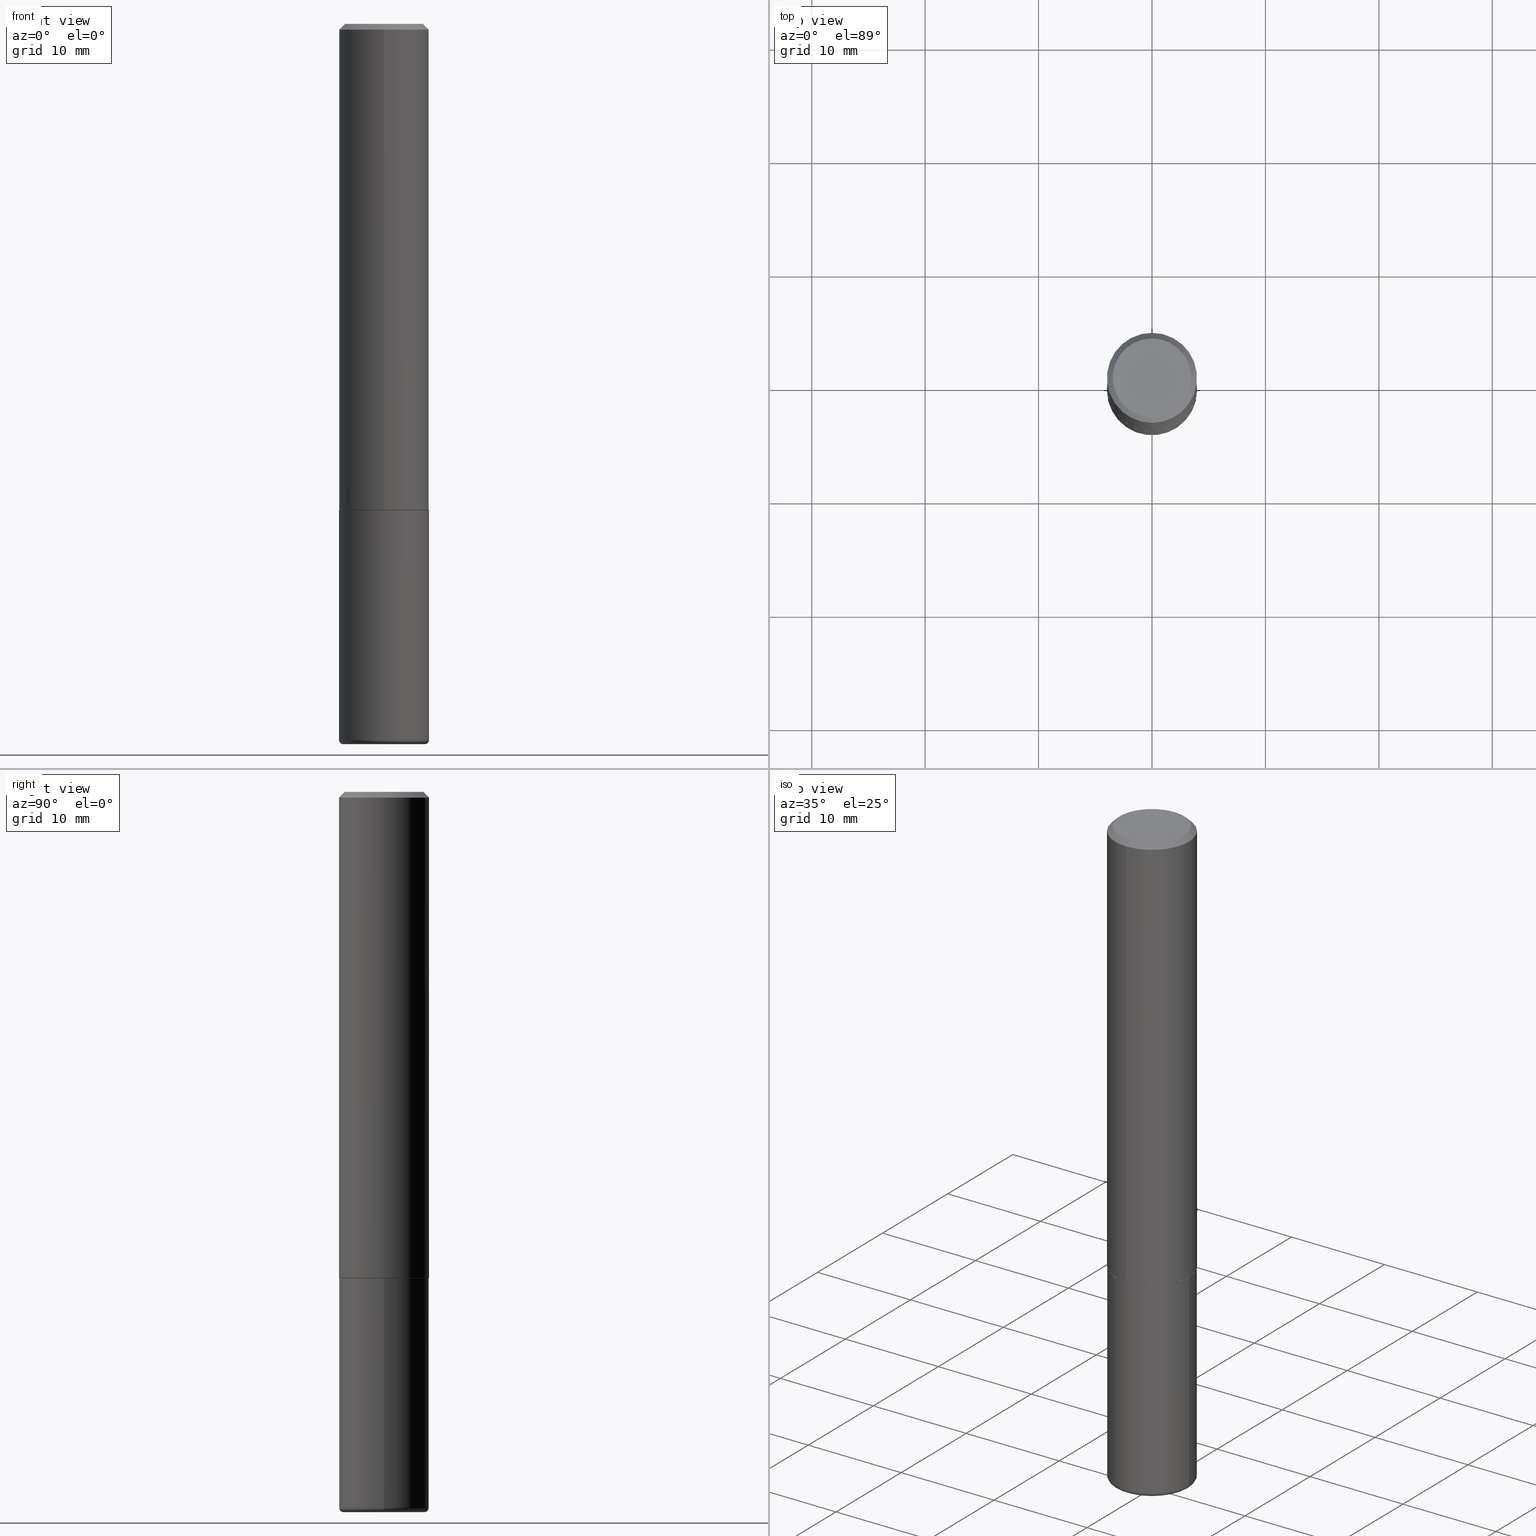
[diagram: canonical four-view strip — front | top / right | iso, engineering-drawing reading convention]
A machine part, canonical four-view strip (front | top / right | iso — engineering-drawing reading convention). The complete STEP part file that produces these views, byte-faithful:
ISO-10303-21;
HEADER;
FILE_DESCRIPTION (( 'STEP AP203' ),
    '1' );
FILE_NAME ('38366.STEP',
    '2024-03-03T01:07:28',
    ( '' ),
    ( '' ),
    'SwSTEP 2.0',
    'SolidWorks 2023',
    '' );
FILE_SCHEMA (( 'CONFIG_CONTROL_DESIGN' ));
ENDSEC;

DATA;
#1 = CARTESIAN_POINT ( 'NONE',  ( 4.124618234985879242E-29, -5.891400171131153383E-15, -1.687000000000000055 ) ) ;
#2 = EDGE_CURVE ( 'NONE', #40, #372, #196, .T. ) ;
#3 = DIRECTION ( 'NONE',  ( 6.982962677686265922E-15, 1.000000000000000000, -3.492234837659248797E-15 ) ) ;
#4 = AXIS2_PLACEMENT_3D ( 'NONE', #190, #223, #265 ) ;
#5 = CARTESIAN_POINT ( 'NONE',  ( 1.110223024625157132E-15, 0.1562500000000001110, -5.456616933842580190E-16 ) ) ;
#6 = EDGE_CURVE ( 'NONE', #141, #178, #191, .T. ) ;
#7 = VERTEX_POINT ( 'NONE', #52 ) ;
#8 = EDGE_CURVE ( 'NONE', #390, #156, #274, .T. ) ;
#9 = CC_DESIGN_APPROVAL ( #323, ( #277 ) ) ;
#10 = EDGE_LOOP ( 'NONE', ( #236, #78, #344, #349 ) ) ;
#11 = DATE_AND_TIME ( #12, #197 ) ;
#12 = CALENDAR_DATE ( 2024, 2, 3 ) ;
#13 = LOCAL_TIME ( 20, 7, 28.00000000000000000, #42 ) ;
#14 = VERTEX_POINT ( 'NONE', #24 ) ;
#15 = PERSON_AND_ORGANIZATION_ROLE ( 'creator' ) ;
#16 = DIRECTION ( 'NONE',  ( 1.000000000000000000, -6.982962677686264344E-15, 4.883557194083111780E-29 ) ) ;
#17 = EDGE_LOOP ( 'NONE', ( #385, #364 ) ) ;
#18 = DIRECTION ( 'NONE',  ( 6.982962677686265133E-15, 1.000000000000000000, -3.496765431890256920E-15 ) ) ;
#19 = APPROVAL ( #241, 'UNSPECIFIED' ) ;
#20 = DIRECTION ( 'NONE',  ( 1.000000000000000000, -6.982962677686269077E-15, 0.000000000000000000 ) ) ;
#21 = EDGE_CURVE ( 'NONE', #372, #141, #154, .T. ) ;
#22 = VECTOR ( 'NONE', #342, 39.37007874015748143 ) ;
#23 = AXIS2_PLACEMENT_3D ( 'NONE', #232, #59, #68 ) ;
#24 = CARTESIAN_POINT ( 'NONE',  ( 1.110223024625178234E-15, 0.1562499999999943101, -1.687000000000000499 ) ) ;
#25 = DIRECTION ( 'NONE',  ( -2.445468806185136597E-29, 3.491481338843145583E-15, 1.000000000000000000 ) ) ;
#26 = DIRECTION ( 'NONE',  ( -6.982962677686265922E-15, -1.000000000000000000, 3.519288880726909138E-15 ) ) ;
#27 = CARTESIAN_POINT ( 'NONE',  ( 0.1412499999999999867, -9.715046825331048380E-15, -2.499999999999999556 ) ) ;
#28 = ORGANIZATION ( 'UNSPECIFIED', 'UNSPECIFIED', '' ) ;
#29 = AXIS2_PLACEMENT_3D ( 'NONE', #320, #160, #411 ) ;
#30 = EDGE_LOOP ( 'NONE', ( #242, #410, #330, #44 ) ) ;
#31 = CARTESIAN_POINT ( 'NONE',  ( 1.103117597267596553E-15, 0.1552499999999940872, -1.688000000000000611 ) ) ;
#32 = ADVANCED_FACE ( 'NONE', ( #407 ), #119, .T. ) ;
#33 = DIRECTION ( 'NONE',  ( -6.982962677686265922E-15, -1.000000000000000000, 3.496765431890251792E-15 ) ) ;
#34 = DIRECTION ( 'NONE',  ( 2.444942640774083230E-29, -3.492234837659248797E-15, -1.000000000000000000 ) ) ;
#35 = EDGE_CURVE ( 'NONE', #276, #347, #229, .T. ) ;
#36 = PERSON_AND_ORGANIZATION ( #416, #28 ) ;
#37 = LINE ( 'NONE', #5, #161 ) ;
#38 = CIRCLE ( 'NONE', #136, 0.1552499999999999991 ) ;
#39 = EDGE_CURVE ( 'NONE', #146, #178, #305, .T. ) ;
#40 = VERTEX_POINT ( 'NONE', #224 ) ;
#41 = EDGE_LOOP ( 'NONE', ( #225, #294, #244, #174 ) ) ;
#42 = COORDINATED_UNIVERSAL_TIME_OFFSET ( 5, 0, .BEHIND. ) ;
#43 = AXIS2_PLACEMENT_3D ( 'NONE', #398, #150, #211 ) ;
#44 = ORIENTED_EDGE ( 'NONE', *, *, #8, .F. ) ;
#45 = PERSON_AND_ORGANIZATION ( #416, #28 ) ;
#46 = ORIENTED_EDGE ( 'NONE', *, *, #312, .F. ) ;
#47 = AXIS2_PLACEMENT_3D ( 'NONE', #202, #200, #269 ) ;
#48 = EDGE_CURVE ( 'NONE', #146, #283, #182, .T. ) ;
#49 = TOROIDAL_SURFACE ( 'NONE', #406, 0.1412499999999999867, 0.01499999999999983985 ) ;
#50 = ORIENTED_EDGE ( 'NONE', *, *, #2, .T. ) ;
#51 = ADVANCED_FACE ( 'NONE', ( #166 ), #110, .T. ) ;
#52 = CARTESIAN_POINT ( 'NONE',  ( -0.1412499999999999867, -7.645584917623391438E-15, -2.499999999999999556 ) ) ;
#53 = EDGE_LOOP ( 'NONE', ( #111, #255, #71, #359 ) ) ;
#54 = CARTESIAN_POINT ( 'NONE',  ( -1.071952812151801215E-15, -0.1562500000000000833, -0.01999999999999948694 ) ) ;
#55 = AXIS2_PLACEMENT_3D ( 'NONE', #91, #158, #231 ) ;
#56 = VECTOR ( 'NONE', #298, 39.37007874015748143 ) ;
#57 = APPLICATION_CONTEXT ( 'configuration controlled 3d designs of mechanical parts and assemblies' ) ;
#58 = ORIENTED_EDGE ( 'NONE', *, *, #106, .T. ) ;
#59 = DIRECTION ( 'NONE',  ( -2.444942640774083791E-29, 3.492234837659248797E-15, 1.000000000000000000 ) ) ;
#60 =( LENGTH_UNIT ( ) NAMED_UNIT ( * ) SI_UNIT ( $, .METRE. ) );
#61 = CARTESIAN_POINT ( 'NONE',  ( 0.000000000000000000, 0.000000000000000000, 0.000000000000000000 ) ) ;
#62 = ORIENTED_EDGE ( 'NONE', *, *, #362, .F. ) ;
#63 = CARTESIAN_POINT ( 'NONE',  ( 4.127951344840510809E-29, -5.893620499967230340E-15, -1.688000000000000167 ) ) ;
#64 = CARTESIAN_POINT ( 'NONE',  ( -1.091087918388439336E-15, -0.1562500000000061062, -1.686999999999999611 ) ) ;
#65 = APPROVAL_PERSON_ORGANIZATION ( #84, #323, #109 ) ;
#66 =( NAMED_UNIT ( * ) PLANE_ANGLE_UNIT ( ) SI_UNIT ( $, .RADIAN. ) );
#67 = CARTESIAN_POINT ( 'NONE',  ( -2.507214449071003411E-45, 3.581180800935380425E-31, 1.025469639761039184E-16 ) ) ;
#68 = DIRECTION ( 'NONE',  ( -6.982962677686265922E-15, -1.000000000000000000, 3.496765431890251792E-15 ) ) ;
#69 = DIRECTION ( 'NONE',  ( -2.444942640774083791E-29, 3.492234837659248797E-15, 1.000000000000000000 ) ) ;
#70 = ADVANCED_FACE ( 'NONE', ( #140 ), #102, .T. ) ;
#71 = ORIENTED_EDGE ( 'NONE', *, *, #6, .T. ) ;
#72 = AXIS2_PLACEMENT_3D ( 'NONE', #124, #256, #374 ) ;
#73 = ORIENTED_EDGE ( 'NONE', *, *, #8, .T. ) ;
#74 = EDGE_CURVE ( 'NONE', #141, #14, #104, .T. ) ;
#75 = CLOSED_SHELL ( 'NONE', ( #168, #216, #353, #284, #51, #273 ) ) ;
#76 = AXIS2_PLACEMENT_3D ( 'NONE', #384, #100, #327 ) ;
#77 = EDGE_LOOP ( 'NONE', ( #89, #222, #92, #264 ) ) ;
#78 = ORIENTED_EDGE ( 'NONE', *, *, #39, .T. ) ;
#79 = CARTESIAN_POINT ( 'NONE',  ( 0.1562500000000000000, -6.984708418355709513E-15, -1.688000000000000167 ) ) ;
#80 = UNCERTAINTY_MEASURE_WITH_UNIT (LENGTH_MEASURE( 1.000000000000000082E-05 ), #201, 'distance_accuracy_value', 'NONE');
#81 = APPROVAL_STATUS ( 'not_yet_approved' ) ;
#82 = ADVANCED_FACE ( 'NONE', ( #193 ), #325, .F. ) ;
#83 = DIRECTION ( 'NONE',  ( 1.000000000000000000, -6.982962677686270655E-15, 0.000000000000000000 ) ) ;
#84 = PERSON_AND_ORGANIZATION ( #416, #28 ) ;
#85 = AXIS2_PLACEMENT_3D ( 'NONE', #61, #163, #95 ) ;
#86 = CONICAL_SURFACE ( 'NONE', #29, 0.1552499999999999991, 0.7853981633975165577 ) ;
#87 = CARTESIAN_POINT ( 'NONE',  ( 4.889885281548175324E-31, -6.984469675318509427E-17, -0.02000000000000003511 ) ) ;
#88 = DIRECTION ( 'NONE',  ( -6.982962677686266711E-15, -1.000000000000000000, 3.492234837659249191E-15 ) ) ;
#89 = ORIENTED_EDGE ( 'NONE', *, *, #175, .T. ) ;
#90 = FACE_OUTER_BOUND ( 'NONE', #17, .T. ) ;
#91 = CARTESIAN_POINT ( 'NONE',  ( 0.1412499999999999867, -9.662674605248401695E-15, -2.484999999999999876 ) ) ;
#92 = ORIENTED_EDGE ( 'NONE', *, *, #74, .F. ) ;
#93 = DIRECTION ( 'NONE',  ( -1.000000000000000000, 6.982962677686265922E-15, -4.876176775795935793E-29 ) ) ;
#94 = CARTESIAN_POINT ( 'NONE',  ( -1.071952812151801215E-15, -0.1562500000000000833, -0.01999999999999948694 ) ) ;
#95 = DIRECTION ( 'NONE',  ( -6.982962677686265922E-15, -1.000000000000000000, 3.492234837659248797E-15 ) ) ;
#96 = CC_DESIGN_PERSON_AND_ORGANIZATION_ASSIGNMENT ( #368, #181, ( #173 ) ) ;
#97 = EDGE_CURVE ( 'NONE', #217, #178, #389, .T. ) ;
#98 = CIRCLE ( 'NONE', #354, 0.1562500000000000000 ) ;
#99 = CARTESIAN_POINT ( 'NONE',  ( -0.1562500000000000000, 1.110223024625156540E-15, -7.685836078523291160E-30 ) ) ;
#100 = DIRECTION ( 'NONE',  ( -2.444942640774083230E-29, 3.492234837659248797E-15, 1.000000000000000000 ) ) ;
#101 = VERTEX_POINT ( 'NONE', #262 ) ;
#102 = CYLINDRICAL_SURFACE ( 'NONE', #85, 0.1562500000000001110 ) ;
#103 = EDGE_LOOP ( 'NONE', ( #297, #50, #144, #46 ) ) ;
#104 = CIRCLE ( 'NONE', #346, 0.1562500000000002220 ) ;
#105 =( GEOMETRIC_REPRESENTATION_CONTEXT ( 3 ) GLOBAL_UNCERTAINTY_ASSIGNED_CONTEXT ( ( #80 ) ) GLOBAL_UNIT_ASSIGNED_CONTEXT ( ( #201, #66, #155 ) ) REPRESENTATION_CONTEXT ( 'NONE', 'WORKASPACE' ) );
#106 = EDGE_CURVE ( 'NONE', #276, #7, #397, .T. ) ;
#107 = DIRECTION ( 'NONE',  ( 2.444942640774083791E-29, -3.492234837659248797E-15, -1.000000000000000000 ) ) ;
#108 = ORIENTED_EDGE ( 'NONE', *, *, #35, .T. ) ;
#109 = APPROVAL_ROLE ( '' ) ;
#110 = TOROIDAL_SURFACE ( 'NONE', #47, 0.1412499999999999867, 0.01499999999999983985 ) ;
#111 = ORIENTED_EDGE ( 'NONE', *, *, #130, .F. ) ;
#112 = CC_DESIGN_SECURITY_CLASSIFICATION ( #251, ( #277 ) ) ;
#113 = PLANE ( 'NONE',  #304 ) ;
#114 = DIRECTION ( 'NONE',  ( 1.000000000000000000, -6.982962677686266711E-15, 4.876176775795936353E-29 ) ) ;
#115 = ADVANCED_FACE ( 'NONE', ( #301 ), #137, .F. ) ;
#116 = EDGE_LOOP ( 'NONE', ( #123, #73 ) ) ;
#117 = DIRECTION ( 'NONE',  ( -6.982962677686265922E-15, -1.000000000000000000, 3.519288880726909138E-15 ) ) ;
#118 = SECURITY_CLASSIFICATION_LEVEL ( 'unclassified' ) ;
#119 = CONICAL_SURFACE ( 'NONE', #135, 0.1552499999999999991, 0.7853981633975165577 ) ;
#120 = APPROVAL_PERSON_ORGANIZATION ( #365, #215, #248 ) ;
#121 = DIRECTION ( 'NONE',  ( -2.445468806185136597E-29, 3.491481338843145583E-15, 1.000000000000000000 ) ) ;
#122 = CARTESIAN_POINT ( 'NONE',  ( 4.127063177626653307E-29, -5.894892405968812096E-15, -1.688000000000000167 ) ) ;
#123 = ORIENTED_EDGE ( 'NONE', *, *, #199, .T. ) ;
#124 = CARTESIAN_POINT ( 'NONE',  ( 0.000000000000000000, 0.000000000000000000, 0.000000000000000000 ) ) ;
#125 = DIRECTION ( 'NONE',  ( -2.444942640774083791E-29, 3.492234837659248797E-15, 1.000000000000000000 ) ) ;
#126 = DIRECTION ( 'NONE',  ( 1.000000000000000000, 0.000000000000000000, 0.000000000000000000 ) ) ;
#127 = ORIENTED_EDGE ( 'NONE', *, *, #97, .T. ) ;
#128 = DIRECTION ( 'NONE',  ( -1.000000000000000000, 6.982962677686265922E-15, -4.876176775795935793E-29 ) ) ;
#129 = AXIS2_PLACEMENT_3D ( 'NONE', #237, #147, #114 ) ;
#130 = EDGE_CURVE ( 'NONE', #14, #217, #37, .T. ) ;
#131 = LINE ( 'NONE', #99, #183 ) ;
#132 = EDGE_CURVE ( 'NONE', #347, #156, #271, .T. ) ;
#133 = DIRECTION ( 'NONE',  ( 1.000000000000000000, -6.982962677686266711E-15, 4.876176775795936353E-29 ) ) ;
#134 = DIRECTION ( 'NONE',  ( 1.000000000000000000, -6.982962677686270655E-15, 0.000000000000000000 ) ) ;
#135 = AXIS2_PLACEMENT_3D ( 'NONE', #122, #409, #26 ) ;
#136 = AXIS2_PLACEMENT_3D ( 'NONE', #367, #360, #117 ) ;
#137 = PLANE ( 'NONE',  #76 ) ;
#138 = SHAPE_DEFINITION_REPRESENTATION ( #233, #333 ) ;
#139 = EDGE_CURVE ( 'NONE', #283, #146, #315, .T. ) ;
#140 = FACE_OUTER_BOUND ( 'NONE', #53, .T. ) ;
#141 = VERTEX_POINT ( 'NONE', #64 ) ;
#142 = PERSON_AND_ORGANIZATION_ROLE ( 'classification_officer' ) ;
#143 = ADVANCED_FACE ( 'NONE', ( #387 ), #311, .T. ) ;
#144 = ORIENTED_EDGE ( 'NONE', *, *, #21, .T. ) ;
#145 = CALENDAR_DATE ( 2024, 2, 3 ) ;
#146 = VERTEX_POINT ( 'NONE', #332 ) ;
#147 = DIRECTION ( 'NONE',  ( -2.445468806185136597E-29, 3.491481338843145583E-15, 1.000000000000000000 ) ) ;
#148 = PERSON_AND_ORGANIZATION ( #416, #28 ) ;
#149 = VECTOR ( 'NONE', #357, 39.37007874015748143 ) ;
#150 = DIRECTION ( 'NONE',  ( -2.445468806185136597E-29, 3.491481338843145583E-15, 1.000000000000000000 ) ) ;
#151 = EDGE_LOOP ( 'NONE', ( #58, #270, #159, #306 ) ) ;
#152 = PERSON_AND_ORGANIZATION_ROLE ( 'design_supplier' ) ;
#153 = CARTESIAN_POINT ( 'NONE',  ( -1.084104955710751547E-15, -0.1552500000000059110, -1.687999999999999501 ) ) ;
#154 = LINE ( 'NONE', #153, #250 ) ;
#155 =( NAMED_UNIT ( * ) SI_UNIT ( $, .STERADIAN. ) SOLID_ANGLE_UNIT ( ) );
#156 = VERTEX_POINT ( 'NONE', #79 ) ;
#157 = DIRECTION ( 'NONE',  ( 1.000000000000000000, -6.982962677686270655E-15, 0.000000000000000000 ) ) ;
#158 = DIRECTION ( 'NONE',  ( -6.982962677686266711E-15, -1.000000000000000000, 3.491481338843145583E-15 ) ) ;
#159 = ORIENTED_EDGE ( 'NONE', *, *, #328, .F. ) ;
#160 = DIRECTION ( 'NONE',  ( -2.444942640774083791E-29, 3.492234837659248797E-15, 1.000000000000000000 ) ) ;
#161 = VECTOR ( 'NONE', #235, 39.37007874015748143 ) ;
#162 = PRODUCT_RELATED_PRODUCT_CATEGORY ( 'detail', '', ( #173 ) ) ;
#163 = DIRECTION ( 'NONE',  ( -2.444942640774083791E-29, 3.492234837659248797E-15, 1.000000000000000000 ) ) ;
#164 = ORIENTED_EDGE ( 'NONE', *, *, #187, .F. ) ;
#165 = DIRECTION ( 'NONE',  ( -2.445468806185136597E-29, 3.491481338843145583E-15, 1.000000000000000000 ) ) ;
#166 = FACE_OUTER_BOUND ( 'NONE', #288, .T. ) ;
#167 = DIRECTION ( 'NONE',  ( -6.982962677686265133E-15, -1.000000000000000000, 3.496765431890256920E-15 ) ) ;
#168 = ADVANCED_FACE ( 'NONE', ( #334 ), #309, .T. ) ;
#169 = COORDINATED_UNIVERSAL_TIME_OFFSET ( 5, 0, .BEHIND. ) ;
#170 = AXIS2_PLACEMENT_3D ( 'NONE', #266, #69, #167 ) ;
#171 = AXIS2_PLACEMENT_3D ( 'NONE', #267, #383, #126 ) ;
#172 = ORIENTED_EDGE ( 'NONE', *, *, #139, .T. ) ;
#173 = PRODUCT ( '38366', '38366', '', ( #348 ) ) ;
#174 = ORIENTED_EDGE ( 'NONE', *, *, #6, .F. ) ;
#175 = EDGE_CURVE ( 'NONE', #372, #40, #38, .T. ) ;
#176 = LOCAL_TIME ( 20, 7, 28.00000000000000000, #402 ) ;
#177 = COORDINATED_UNIVERSAL_TIME_OFFSET ( 5, 0, .BEHIND. ) ;
#178 = VERTEX_POINT ( 'NONE', #54 ) ;
#179 = CALENDAR_DATE ( 2024, 2, 3 ) ;
#180 = APPROVAL_STATUS ( 'not_yet_approved' ) ;
#181 = PERSON_AND_ORGANIZATION_ROLE ( 'design_owner' ) ;
#182 = CIRCLE ( 'NONE', #413, 0.1362499999999998990 ) ;
#183 = VECTOR ( 'NONE', #226, 39.37007874015748143 ) ;
#184 = CARTESIAN_POINT ( 'NONE',  ( 6.076989983370064174E-29, -8.676331127025216680E-15, -2.484999999999999876 ) ) ;
#185 = CARTESIAN_POINT ( 'NONE',  ( 4.889885281548175324E-31, -6.984469675318509427E-17, -0.02000000000000003511 ) ) ;
#186 = APPLICATION_CONTEXT ( 'configuration controlled 3d designs of mechanical parts and assemblies' ) ;
#187 = EDGE_CURVE ( 'NONE', #101, #347, #321, .T. ) ;
#188 = CARTESIAN_POINT ( 'NONE',  ( 4.127063177626653307E-29, -5.894892405968812096E-15, -1.688000000000000167 ) ) ;
#189 = DIRECTION ( 'NONE',  ( -2.445468806185136597E-29, 3.491481338843145583E-15, 1.000000000000000000 ) ) ;
#190 = CARTESIAN_POINT ( 'NONE',  ( -0.1412499999999999867, -7.672689512764074473E-15, -2.484999999999999876 ) ) ;
#191 = LINE ( 'NONE', #316, #22 ) ;
#192 = CARTESIAN_POINT ( 'NONE',  ( 1.091087918388479568E-15, 0.1562499999999999445, -0.02000000000000057981 ) ) ;
#193 = FACE_OUTER_BOUND ( 'NONE', #292, .T. ) ;
#194 = ORIENTED_EDGE ( 'NONE', *, *, #254, .T. ) ;
#195 = DIRECTION ( 'NONE',  ( 2.438088387897960049E-29, -3.491481338843145188E-15, -1.000000000000000000 ) ) ;
#196 = CIRCLE ( 'NONE', #213, 0.1552499999999999991 ) ;
#197 = LOCAL_TIME ( 20, 7, 28.00000000000000000, #177 ) ;
#198 = DIRECTION ( 'NONE',  ( -2.444942640774083791E-29, 3.492234837659248797E-15, 1.000000000000000000 ) ) ;
#199 = EDGE_CURVE ( 'NONE', #156, #390, #331, .T. ) ;
#200 = DIRECTION ( 'NONE',  ( -2.445468806185136597E-29, 3.491481338843145583E-15, 1.000000000000000000 ) ) ;
#201 =( CONVERSION_BASED_UNIT ( 'INCH', #261 ) LENGTH_UNIT ( ) NAMED_UNIT ( #392 ) );
#202 = CARTESIAN_POINT ( 'NONE',  ( 6.076989983370064174E-29, -8.676331127025216680E-15, -2.484999999999999876 ) ) ;
#203 = ORIENTED_EDGE ( 'NONE', *, *, #394, .T. ) ;
#204 = CIRCLE ( 'NONE', #275, 0.1562499999999999722 ) ;
#205 = APPROVAL_DATE_TIME ( #209, #19 ) ;
#206 = ORIENTED_EDGE ( 'NONE', *, *, #175, .F. ) ;
#207 = DIRECTION ( 'NONE',  ( 6.982962677686265133E-15, 1.000000000000000000, -3.496765431890256920E-15 ) ) ;
#208 = AXIS2_PLACEMENT_3D ( 'NONE', #373, #286, #83 ) ;
#209 = DATE_AND_TIME ( #179, #13 ) ;
#210 = CALENDAR_DATE ( 2024, 2, 3 ) ;
#211 = DIRECTION ( 'NONE',  ( 1.000000000000000000, -6.982962677686269077E-15, 0.000000000000000000 ) ) ;
#212 = APPLICATION_PROTOCOL_DEFINITION ( 'international standard', 'config_control_design', 1994, #57 ) ;
#213 = AXIS2_PLACEMENT_3D ( 'NONE', #188, #125, #404 ) ;
#214 = FACE_OUTER_BOUND ( 'NONE', #218, .T. ) ;
#215 = APPROVAL ( #180, 'UNSPECIFIED' ) ;
#216 = ADVANCED_FACE ( 'NONE', ( #370 ), #49, .T. ) ;
#217 = VERTEX_POINT ( 'NONE', #337 ) ;
#218 = EDGE_LOOP ( 'NONE', ( #378, #247, #234, #127 ) ) ;
#219 = EDGE_CURVE ( 'NONE', #178, #217, #98, .T. ) ;
#220 = CONICAL_SURFACE ( 'NONE', #371, 0.1562500000000000000, 0.7853981633974472798 ) ;
#221 = APPLICATION_PROTOCOL_DEFINITION ( 'international standard', 'config_control_design', 1994, #186 ) ;
#222 = ORIENTED_EDGE ( 'NONE', *, *, #278, .T. ) ;
#223 = DIRECTION ( 'NONE',  ( 7.105427357601001859E-15, 1.000000000000000000, -3.491481338843145583E-15 ) ) ;
#224 = CARTESIAN_POINT ( 'NONE',  ( 1.106670310946397846E-15, 0.1552499999999940872, -1.688000000000000611 ) ) ;
#225 = ORIENTED_EDGE ( 'NONE', *, *, #74, .T. ) ;
#226 = DIRECTION ( 'NONE',  ( -2.445468806185136877E-29, 3.491481338843145188E-15, 1.000000000000000000 ) ) ;
#227 = DIRECTION ( 'NONE',  ( -2.445468806185136597E-29, 3.491481338843145583E-15, 1.000000000000000000 ) ) ;
#228 = CARTESIAN_POINT ( 'NONE',  ( 1.021258291611616270E-15, 0.1362499999999998990, -3.732700326549684147E-16 ) ) ;
#229 = CIRCLE ( 'NONE', #55, 0.01499999999999983985 ) ;
#230 = AXIS2_PLACEMENT_3D ( 'NONE', #63, #195, #93 ) ;
#231 = DIRECTION ( 'NONE',  ( 1.000000000000000000, -6.982962677686213068E-15, 0.000000000000000000 ) ) ;
#232 = CARTESIAN_POINT ( 'NONE',  ( 4.124618234985879242E-29, -5.891400171131153383E-15, -1.687000000000000055 ) ) ;
#233 = PRODUCT_DEFINITION_SHAPE ( 'NONE', 'NONE',  #412 ) ;
#234 = ORIENTED_EDGE ( 'NONE', *, *, #388, .T. ) ;
#235 = DIRECTION ( 'NONE',  ( -2.444942640774083791E-29, 3.492234837659248797E-15, 1.000000000000000000 ) ) ;
#236 = ORIENTED_EDGE ( 'NONE', *, *, #48, .F. ) ;
#237 = CARTESIAN_POINT ( 'NONE',  ( 0.000000000000000000, 0.000000000000000000, 0.000000000000000000 ) ) ;
#238 = CC_DESIGN_PERSON_AND_ORGANIZATION_ASSIGNMENT ( #369, #15, ( #412 ) ) ;
#239 = CARTESIAN_POINT ( 'NONE',  ( 4.889885281548175324E-31, -6.984469675318509427E-17, -0.02000000000000003511 ) ) ;
#240 = DIRECTION ( 'NONE',  ( -2.444942640774083791E-29, 3.492234837659248797E-15, 1.000000000000000000 ) ) ;
#241 = APPROVAL_STATUS ( 'not_yet_approved' ) ;
#242 = ORIENTED_EDGE ( 'NONE', *, *, #394, .F. ) ;
#243 = ADVANCED_FACE ( 'NONE', ( #214 ), #220, .T. ) ;
#244 = ORIENTED_EDGE ( 'NONE', *, *, #219, .F. ) ;
#245 = DATE_AND_TIME ( #210, #176 ) ;
#246 = CARTESIAN_POINT ( 'NONE',  ( 1.286637735382378644E-28, 9.415550375444000163E-16, -2.500000000000000000 ) ) ;
#247 = ORIENTED_EDGE ( 'NONE', *, *, #139, .F. ) ;
#248 = APPROVAL_ROLE ( '' ) ;
#249 = APPROVAL_ROLE ( '' ) ;
#250 = VECTOR ( 'NONE', #290, 39.37007874015748143 ) ;
#251 = SECURITY_CLASSIFICATION ( '', '', #118 ) ;
#252 = CC_DESIGN_PERSON_AND_ORGANIZATION_ASSIGNMENT ( #148, #142, ( #251 ) ) ;
#253 = FACE_OUTER_BOUND ( 'NONE', #41, .T. ) ;
#254 = EDGE_CURVE ( 'NONE', #7, #276, #363, .T. ) ;
#255 = ORIENTED_EDGE ( 'NONE', *, *, #312, .T. ) ;
#256 = DIRECTION ( 'NONE',  ( -2.444942640774083791E-29, 3.492234837659248797E-15, 1.000000000000000000 ) ) ;
#257 = DIRECTION ( 'NONE',  ( 5.024295867788404755E-15, 0.7071067811865981989, 0.7071067811864968355 ) ) ;
#258 = EDGE_LOOP ( 'NONE', ( #356, #203, #313, #352 ) ) ;
#259 = CC_DESIGN_APPROVAL ( #19, ( #412 ) ) ;
#260 = FACE_OUTER_BOUND ( 'NONE', #116, .T. ) ;
#261 = LENGTH_MEASURE_WITH_UNIT ( LENGTH_MEASURE( 0.02539999999999999897 ), #60 );
#262 = CARTESIAN_POINT ( 'NONE',  ( -0.1562499999999999167, -7.566108102400061717E-15, -2.484999999999999876 ) ) ;
#263 = ADVANCED_FACE ( 'NONE', ( #253 ), #289, .T. ) ;
#264 = ORIENTED_EDGE ( 'NONE', *, *, #21, .F. ) ;
#265 = DIRECTION ( 'NONE',  ( -1.000000000000000000, 7.105427357601001859E-15, 0.000000000000000000 ) ) ;
#266 = CARTESIAN_POINT ( 'NONE',  ( 4.889885281548175324E-31, -6.984469675318509427E-17, -0.02000000000000003511 ) ) ;
#267 = CARTESIAN_POINT ( 'NONE',  ( 0.000000000000000000, 0.000000000000000000, 0.000000000000000000 ) ) ;
#268 = CIRCLE ( 'NONE', #4, 0.01499999999999983985 ) ;
#269 = DIRECTION ( 'NONE',  ( 1.000000000000000000, -6.982962677686264344E-15, 4.883557194083111780E-29 ) ) ;
#270 = ORIENTED_EDGE ( 'NONE', *, *, #362, .T. ) ;
#271 = LINE ( 'NONE', #386, #149 ) ;
#272 = MANIFOLD_SOLID_BREP ( 'Body-Move/Copy2[2]', #381 ) ;
#273 = ADVANCED_FACE ( 'NONE', ( #90 ), #113, .T. ) ;
#274 = CIRCLE ( 'NONE', #314, 0.1562500000000000000 ) ;
#275 = AXIS2_PLACEMENT_3D ( 'NONE', #415, #165, #157 ) ;
#276 = VERTEX_POINT ( 'NONE', #27 ) ;
#277 = PRODUCT_DEFINITION_FORMATION_WITH_SPECIFIED_SOURCE ( 'ANY', '', #173, .NOT_KNOWN. ) ;
#278 = EDGE_CURVE ( 'NONE', #40, #14, #322, .T. ) ;
#279 = AXIS2_PLACEMENT_3D ( 'NONE', #379, #227, #134 ) ;
#280 = AXIS2_PLACEMENT_3D ( 'NONE', #318, #25, #133 ) ;
#281 = COORDINATED_UNIVERSAL_TIME_OFFSET ( 5, 0, .BEHIND. ) ;
#282 = APPROVAL_DATE_TIME ( #11, #323 ) ;
#283 = VERTEX_POINT ( 'NONE', #228 ) ;
#284 = ADVANCED_FACE ( 'NONE', ( #295 ), #326, .T. ) ;
#285 = CC_DESIGN_PERSON_AND_ORGANIZATION_ASSIGNMENT ( #36, #310, ( #277 ) ) ;
#286 = DIRECTION ( 'NONE',  ( -2.445468806185136597E-29, 3.491481338843145583E-15, 1.000000000000000000 ) ) ;
#287 = CC_DESIGN_APPROVAL ( #215, ( #251 ) ) ;
#288 = EDGE_LOOP ( 'NONE', ( #62, #194, #108, #164 ) ) ;
#289 = CYLINDRICAL_SURFACE ( 'NONE', #72, 0.1562500000000001110 ) ;
#290 = DIRECTION ( 'NONE',  ( -4.937700262164884886E-15, -0.7071067811865933139, 0.7071067811865017205 ) ) ;
#291 = LINE ( 'NONE', #192, #56 ) ;
#292 = EDGE_LOOP ( 'NONE', ( #172, #366 ) ) ;
#293 = FACE_OUTER_BOUND ( 'NONE', #103, .T. ) ;
#294 = ORIENTED_EDGE ( 'NONE', *, *, #130, .T. ) ;
#295 = FACE_OUTER_BOUND ( 'NONE', #30, .T. ) ;
#296 = DIRECTION ( 'NONE',  ( -4.851104656540958753E-15, -0.7071067811865492381, -0.7071067811865457964 ) ) ;
#297 = ORIENTED_EDGE ( 'NONE', *, *, #278, .F. ) ;
#298 = DIRECTION ( 'NONE',  ( 4.937700262164542520E-15, 0.7071067811865443531, -0.7071067811865506814 ) ) ;
#299 = CC_DESIGN_PERSON_AND_ORGANIZATION_ASSIGNMENT ( #302, #152, ( #277 ) ) ;
#300 = CARTESIAN_POINT ( 'NONE',  ( -0.1562500000000000000, -6.174752788871067364E-15, -1.688000000000000167 ) ) ;
#301 = FACE_OUTER_BOUND ( 'NONE', #340, .T. ) ;
#302 = PERSON_AND_ORGANIZATION ( #416, #28 ) ;
#303 = VECTOR ( 'NONE', #296, 39.37007874015748143 ) ;
#304 = AXIS2_PLACEMENT_3D ( 'NONE', #246, #418, #128 ) ;
#305 = LINE ( 'NONE', #94, #303 ) ;
#306 = ORIENTED_EDGE ( 'NONE', *, *, #35, .F. ) ;
#307 = LOCAL_TIME ( 20, 7, 28.00000000000000000, #281 ) ;
#308 = DATE_AND_TIME ( #145, #307 ) ;
#309 = CYLINDRICAL_SURFACE ( 'NONE', #129, 0.1562500000000000000 ) ;
#310 = PERSON_AND_ORGANIZATION_ROLE ( 'creator' ) ;
#311 = CONICAL_SURFACE ( 'NONE', #358, 0.1562500000000000000, 0.7853981633974472798 ) ;
#312 = EDGE_CURVE ( 'NONE', #14, #141, #382, .T. ) ;
#313 = ORIENTED_EDGE ( 'NONE', *, *, #199, .F. ) ;
#314 = AXIS2_PLACEMENT_3D ( 'NONE', #319, #375, #20 ) ;
#315 = CIRCLE ( 'NONE', #391, 0.1362499999999998990 ) ;
#316 = CARTESIAN_POINT ( 'NONE',  ( -1.091087918388479765E-15, -0.1562500000000001110, 5.456616933842580190E-16 ) ) ;
#317 = DIRECTION ( 'NONE',  ( 1.000000000000000000, -6.982962677686270655E-15, 0.000000000000000000 ) ) ;
#318 = CARTESIAN_POINT ( 'NONE',  ( 0.000000000000000000, 0.000000000000000000, 0.000000000000000000 ) ) ;
#319 = CARTESIAN_POINT ( 'NONE',  ( 4.127951344840510809E-29, -5.893620499967230340E-15, -1.688000000000000167 ) ) ;
#320 = CARTESIAN_POINT ( 'NONE',  ( 4.127063177626653307E-29, -5.894892405968812096E-15, -1.688000000000000167 ) ) ;
#321 = CIRCLE ( 'NONE', #208, 0.1562499999999999722 ) ;
#322 = LINE ( 'NONE', #31, #414 ) ;
#323 = APPROVAL ( #81, 'UNSPECIFIED' ) ;
#324 = DIRECTION ( 'NONE',  ( -2.444942640774083791E-29, 3.492234837659248797E-15, 1.000000000000000000 ) ) ;
#325 = PLANE ( 'NONE',  #338 ) ;
#326 = CYLINDRICAL_SURFACE ( 'NONE', #280, 0.1562500000000000000 ) ;
#327 = DIRECTION ( 'NONE',  ( -6.982962677686265922E-15, -1.000000000000000000, 3.492234837659248797E-15 ) ) ;
#328 = EDGE_CURVE ( 'NONE', #347, #101, #204, .T. ) ;
#329 = APPROVAL_PERSON_ORGANIZATION ( #45, #19, #249 ) ;
#330 = ORIENTED_EDGE ( 'NONE', *, *, #132, .T. ) ;
#331 = CIRCLE ( 'NONE', #43, 0.1562500000000000000 ) ;
#332 = CARTESIAN_POINT ( 'NONE',  ( -1.003347832174085884E-15, -0.1362499999999998990, 5.783639606071762514E-16 ) ) ;
#333 = ADVANCED_BREP_SHAPE_REPRESENTATION ( '38366', ( #401, #272, #171 ), #105 ) ;
#334 = FACE_OUTER_BOUND ( 'NONE', #258, .T. ) ;
#335 = DATE_AND_TIME ( #336, #339 ) ;
#336 = CALENDAR_DATE ( 2024, 2, 3 ) ;
#337 = CARTESIAN_POINT ( 'NONE',  ( 1.091087918388479568E-15, 0.1562499999999999445, -0.02000000000000057981 ) ) ;
#338 = AXIS2_PLACEMENT_3D ( 'NONE', #417, #34, #3 ) ;
#339 = LOCAL_TIME ( 20, 7, 28.00000000000000000, #169 ) ;
#340 = EDGE_LOOP ( 'NONE', ( #206, #395 ) ) ;
#341 = DIRECTION ( 'NONE',  ( -6.982962677686265133E-15, -1.000000000000000000, 3.496765431890256920E-15 ) ) ;
#342 = DIRECTION ( 'NONE',  ( -2.444942640774083791E-29, 3.492234837659248797E-15, 1.000000000000000000 ) ) ;
#343 = ADVANCED_FACE ( 'NONE', ( #293 ), #86, .T. ) ;
#344 = ORIENTED_EDGE ( 'NONE', *, *, #219, .T. ) ;
#345 = DIRECTION ( 'NONE',  ( 2.444942640774083791E-29, -3.492234837659248797E-15, -1.000000000000000000 ) ) ;
#346 = AXIS2_PLACEMENT_3D ( 'NONE', #1, #324, #33 ) ;
#347 = VERTEX_POINT ( 'NONE', #355 ) ;
#348 = MECHANICAL_CONTEXT ( 'NONE', #186, 'mechanical' ) ;
#349 = ORIENTED_EDGE ( 'NONE', *, *, #388, .F. ) ;
#350 = CARTESIAN_POINT ( 'NONE',  ( -1.084104955710751547E-15, -0.1552500000000059110, -1.687999999999999501 ) ) ;
#351 = DIRECTION ( 'NONE',  ( -6.982962677686266711E-15, -1.000000000000000000, 3.492234837659249191E-15 ) ) ;
#352 = ORIENTED_EDGE ( 'NONE', *, *, #132, .F. ) ;
#353 = ADVANCED_FACE ( 'NONE', ( #260 ), #376, .F. ) ;
#354 = AXIS2_PLACEMENT_3D ( 'NONE', #87, #403, #341 ) ;
#355 = CARTESIAN_POINT ( 'NONE',  ( 0.1562499999999999167, -9.767419045413696643E-15, -2.484999999999999876 ) ) ;
#356 = ORIENTED_EDGE ( 'NONE', *, *, #328, .T. ) ;
#357 = DIRECTION ( 'NONE',  ( -2.445468806185136877E-29, 3.491481338843145188E-15, 1.000000000000000000 ) ) ;
#358 = AXIS2_PLACEMENT_3D ( 'NONE', #239, #107, #207 ) ;
#359 = ORIENTED_EDGE ( 'NONE', *, *, #97, .F. ) ;
#360 = DIRECTION ( 'NONE',  ( -2.444942640774083791E-29, 3.492234837659248797E-15, 1.000000000000000000 ) ) ;
#361 = APPROVAL_DATE_TIME ( #245, #215 ) ;
#362 = EDGE_CURVE ( 'NONE', #7, #101, #268, .T. ) ;
#363 = CIRCLE ( 'NONE', #399, 0.1412499999999999867 ) ;
#364 = ORIENTED_EDGE ( 'NONE', *, *, #254, .F. ) ;
#365 = PERSON_AND_ORGANIZATION ( #416, #28 ) ;
#366 = ORIENTED_EDGE ( 'NONE', *, *, #48, .T. ) ;
#367 = CARTESIAN_POINT ( 'NONE',  ( 4.127063177626653307E-29, -5.894892405968812096E-15, -1.688000000000000167 ) ) ;
#368 = PERSON_AND_ORGANIZATION ( #416, #28 ) ;
#369 = PERSON_AND_ORGANIZATION ( #416, #28 ) ;
#370 = FACE_OUTER_BOUND ( 'NONE', #151, .T. ) ;
#371 = AXIS2_PLACEMENT_3D ( 'NONE', #185, #345, #18 ) ;
#372 = VERTEX_POINT ( 'NONE', #350 ) ;
#373 = CARTESIAN_POINT ( 'NONE',  ( 6.076989983370064174E-29, -8.676331127025216680E-15, -2.484999999999999876 ) ) ;
#374 = DIRECTION ( 'NONE',  ( -6.982962677686265922E-15, -1.000000000000000000, 3.492234837659248797E-15 ) ) ;
#375 = DIRECTION ( 'NONE',  ( -2.445468806185136597E-29, 3.491481338843145583E-15, 1.000000000000000000 ) ) ;
#376 = PLANE ( 'NONE',  #230 ) ;
#377 = CC_DESIGN_DATE_AND_TIME_ASSIGNMENT ( #335, #396, ( #412 ) ) ;
#378 = ORIENTED_EDGE ( 'NONE', *, *, #39, .F. ) ;
#379 = CARTESIAN_POINT ( 'NONE',  ( 6.113672015462840371E-29, -8.728703347107863365E-15, -2.499999999999999556 ) ) ;
#380 = DESIGN_CONTEXT ( 'detailed design', #57, 'design' ) ;
#381 = CLOSED_SHELL ( 'NONE', ( #32, #263, #143, #243, #70, #343, #115, #82 ) ) ;
#382 = CIRCLE ( 'NONE', #23, 0.1562500000000002220 ) ;
#383 = DIRECTION ( 'NONE',  ( 0.000000000000000000, 0.000000000000000000, 1.000000000000000000 ) ) ;
#384 = CARTESIAN_POINT ( 'NONE',  ( 4.127063177626653307E-29, -5.894892405968812096E-15, -1.688000000000000167 ) ) ;
#385 = ORIENTED_EDGE ( 'NONE', *, *, #106, .F. ) ;
#386 = CARTESIAN_POINT ( 'NONE',  ( 0.1562500000000000000, -1.091087918388479174E-15, 7.619026212181150377E-30 ) ) ;
#387 = FACE_OUTER_BOUND ( 'NONE', #10, .T. ) ;
#388 = EDGE_CURVE ( 'NONE', #283, #217, #291, .T. ) ;
#389 = CIRCLE ( 'NONE', #170, 0.1562500000000000000 ) ;
#390 = VERTEX_POINT ( 'NONE', #300 ) ;
#391 = AXIS2_PLACEMENT_3D ( 'NONE', #393, #240, #88 ) ;
#392 = DIMENSIONAL_EXPONENTS ( 1.000000000000000000, 0.000000000000000000, 0.000000000000000000, 0.000000000000000000, 0.000000000000000000, 0.000000000000000000, 0.000000000000000000 ) ;
#393 = CARTESIAN_POINT ( 'NONE',  ( -2.507214449071003411E-45, 3.581180800935380425E-31, 1.025469639761039184E-16 ) ) ;
#394 = EDGE_CURVE ( 'NONE', #101, #390, #131, .T. ) ;
#395 = ORIENTED_EDGE ( 'NONE', *, *, #2, .F. ) ;
#396 = DATE_TIME_ROLE ( 'creation_date' ) ;
#397 = CIRCLE ( 'NONE', #279, 0.1412499999999999867 ) ;
#398 = CARTESIAN_POINT ( 'NONE',  ( 4.127951344840510809E-29, -5.893620499967230340E-15, -1.688000000000000167 ) ) ;
#399 = AXIS2_PLACEMENT_3D ( 'NONE', #405, #121, #317 ) ;
#400 = DATE_TIME_ROLE ( 'classification_date' ) ;
#401 = MANIFOLD_SOLID_BREP ( 'Body-Move/Copy2[1]', #75 ) ;
#402 = COORDINATED_UNIVERSAL_TIME_OFFSET ( 5, 0, .BEHIND. ) ;
#403 = DIRECTION ( 'NONE',  ( -2.444942640774083791E-29, 3.492234837659248797E-15, 1.000000000000000000 ) ) ;
#404 = DIRECTION ( 'NONE',  ( -6.982962677686265922E-15, -1.000000000000000000, 3.519288880726909138E-15 ) ) ;
#405 = CARTESIAN_POINT ( 'NONE',  ( 6.113672015462840371E-29, -8.728703347107863365E-15, -2.499999999999999556 ) ) ;
#406 = AXIS2_PLACEMENT_3D ( 'NONE', #184, #189, #16 ) ;
#407 = FACE_OUTER_BOUND ( 'NONE', #77, .T. ) ;
#408 = CC_DESIGN_DATE_AND_TIME_ASSIGNMENT ( #308, #400, ( #251 ) ) ;
#409 = DIRECTION ( 'NONE',  ( -2.444942640774083791E-29, 3.492234837659248797E-15, 1.000000000000000000 ) ) ;
#410 = ORIENTED_EDGE ( 'NONE', *, *, #187, .T. ) ;
#411 = DIRECTION ( 'NONE',  ( -6.982962677686265922E-15, -1.000000000000000000, 3.519288880726909138E-15 ) ) ;
#412 = PRODUCT_DEFINITION ( 'UNKNOWN', '', #277, #380 ) ;
#413 = AXIS2_PLACEMENT_3D ( 'NONE', #67, #198, #351 ) ;
#414 = VECTOR ( 'NONE', #257, 39.37007874015748143 ) ;
#415 = CARTESIAN_POINT ( 'NONE',  ( 6.076989983370064174E-29, -8.676331127025216680E-15, -2.484999999999999876 ) ) ;
#416 = PERSON ( 'UNSPECIFIED', 'UNSPECIFIED', 'UNSPECIFIED', ('UNSPECIFIED'), ('UNSPECIFIED'), ('UNSPECIFIED') ) ;
#417 = CARTESIAN_POINT ( 'NONE',  ( 9.514286648347531688E-16, 0.1362499999999998990, -4.245435146430203739E-16 ) ) ;
#418 = DIRECTION ( 'NONE',  ( 2.438088387897960049E-29, -3.491481338843145188E-15, -1.000000000000000000 ) ) ;
ENDSEC;
END-ISO-10303-21;
